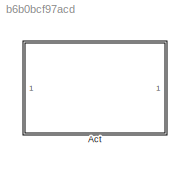
MODEL slx_b6b0bcf97acd
KIND model
CONFIG AbsTol = auto
CONFIG EnableMultiTasking = off
CONFIG FixedStep = auto
CONFIG MaxStep = auto
CONFIG MinStep = auto
CONFIG RelTol = 1e-3
CONFIG SampleTimeConstraint = Unconstrained
CONFIG SolverName = VariableStepAuto
CONFIG StartTime = 0.0
CONFIG StopTime = 10.0
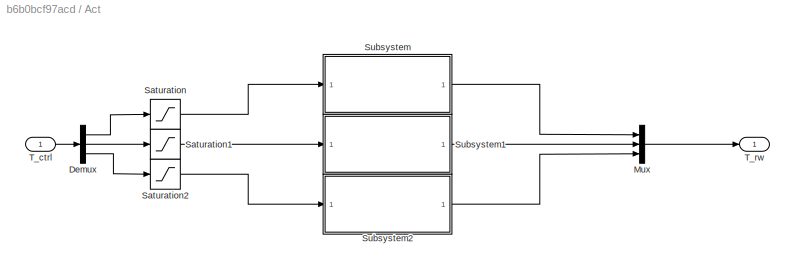
BLOCK [SubSystem] Act
BLOCK [Demux] Act/Demux
  Outputs = 3
BLOCK [Mux] Act/Mux
  DisplayOption = bar
  Inputs = 3
BLOCK [Saturate] Act/Saturation
  LowerLimit = -0.2
  UpperLimit = 0.2
BLOCK [Saturate] Act/Saturation1
  LowerLimit = -0.2
  UpperLimit = 0.2
BLOCK [Saturate] Act/Saturation2
  LowerLimit = -0.2
  UpperLimit = 0.2
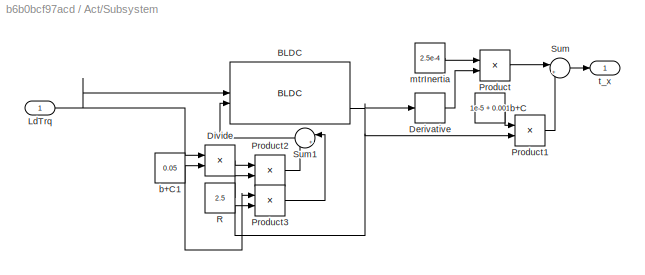
BLOCK [SubSystem] Act/Subsystem
BLOCK [Reference] Act/Subsystem/BLDC  REF=autolibbldc/BLDC
  LibrarySourceBlock = mcblib/Electrical Systems/Motors/BLDC
  SourceBlock = autolibbldc/BLDC
  SourceType = BLDC
BLOCK [Derivative] Act/Subsystem/Derivative
BLOCK [Product] Act/Subsystem/Divide
  Inputs = */
BLOCK [Inport] Act/Subsystem/LdTrq
BLOCK [Product] Act/Subsystem/Product
BLOCK [Product] Act/Subsystem/Product1
BLOCK [Product] Act/Subsystem/Product2
BLOCK [Product] Act/Subsystem/Product3
BLOCK [Constant] Act/Subsystem/R
  Value = 2.5
BLOCK [Sum] Act/Subsystem/Sum
  Inputs = |++
BLOCK [Sum] Act/Subsystem/Sum1
  Inputs = |++
BLOCK [Constant] Act/Subsystem/b+C
  Value = 1e-5 + 0.001
BLOCK [Constant] Act/Subsystem/b+C1
  Value = 0.05
BLOCK [Constant] Act/Subsystem/mtrInertia
  Value = 2.5e-4
BLOCK [Outport] Act/Subsystem/t_x
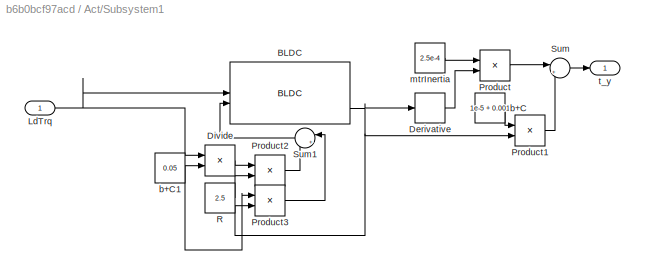
BLOCK [SubSystem] Act/Subsystem1
BLOCK [Reference] Act/Subsystem1/BLDC  REF=autolibbldc/BLDC
  LibrarySourceBlock = mcblib/Electrical Systems/Motors/BLDC
  SourceBlock = autolibbldc/BLDC
  SourceType = BLDC
BLOCK [Derivative] Act/Subsystem1/Derivative
BLOCK [Product] Act/Subsystem1/Divide
  Inputs = */
BLOCK [Inport] Act/Subsystem1/LdTrq
BLOCK [Product] Act/Subsystem1/Product
BLOCK [Product] Act/Subsystem1/Product1
BLOCK [Product] Act/Subsystem1/Product2
BLOCK [Product] Act/Subsystem1/Product3
BLOCK [Constant] Act/Subsystem1/R
  Value = 2.5
BLOCK [Sum] Act/Subsystem1/Sum
  Inputs = |++
BLOCK [Sum] Act/Subsystem1/Sum1
  Inputs = |++
BLOCK [Constant] Act/Subsystem1/b+C
  Value = 1e-5 + 0.001
BLOCK [Constant] Act/Subsystem1/b+C1
  Value = 0.05
BLOCK [Constant] Act/Subsystem1/mtrInertia
  Value = 2.5e-4
BLOCK [Outport] Act/Subsystem1/t_y
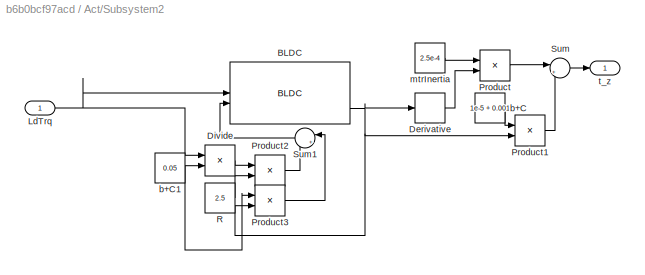
BLOCK [SubSystem] Act/Subsystem2
BLOCK [Reference] Act/Subsystem2/BLDC  REF=autolibbldc/BLDC
  LibrarySourceBlock = mcblib/Electrical Systems/Motors/BLDC
  SourceBlock = autolibbldc/BLDC
  SourceType = BLDC
BLOCK [Derivative] Act/Subsystem2/Derivative
BLOCK [Product] Act/Subsystem2/Divide
  Inputs = */
BLOCK [Inport] Act/Subsystem2/LdTrq
BLOCK [Product] Act/Subsystem2/Product
BLOCK [Product] Act/Subsystem2/Product1
BLOCK [Product] Act/Subsystem2/Product2
BLOCK [Product] Act/Subsystem2/Product3
BLOCK [Constant] Act/Subsystem2/R
  Value = 2.5
BLOCK [Sum] Act/Subsystem2/Sum
  Inputs = |++
BLOCK [Sum] Act/Subsystem2/Sum1
  Inputs = |++
BLOCK [Constant] Act/Subsystem2/b+C
  Value = 1e-5 + 0.001
BLOCK [Constant] Act/Subsystem2/b+C1
  Value = 0.05
BLOCK [Constant] Act/Subsystem2/mtrInertia
  Value = 2.5e-4
BLOCK [Outport] Act/Subsystem2/t_z
BLOCK [Inport] Act/T_ctrl
BLOCK [Outport] Act/T_rw
LINE Act/Demux:1 -> Act/Saturation:1
LINE Act/Demux:2 -> Act/Saturation1:1
LINE Act/Demux:3 -> Act/Saturation2:1
LINE Act/Mux:1 -> Act/T_rw:1
LINE Act/Saturation1:1 -> Act/Subsystem1:1
LINE Act/Saturation2:1 -> Act/Subsystem2:1
LINE Act/Saturation:1 -> Act/Subsystem:1
NET Act/Subsystem/BLDC:3 -> Act/Subsystem/Derivative:1, Act/Subsystem/Product1:2, Act/Subsystem/Product3:2
LINE Act/Subsystem/Derivative:1 -> Act/Subsystem/Product:2
LINE Act/Subsystem/Divide:1 -> Act/Subsystem/Product2:1
NET Act/Subsystem/LdTrq:1 -> Act/Subsystem/BLDC:1, Act/Subsystem/Divide:1
LINE Act/Subsystem/Product1:1 -> Act/Subsystem/Sum:2
LINE Act/Subsystem/Product2:1 -> Act/Subsystem/Sum1:2
LINE Act/Subsystem/Product3:1 -> Act/Subsystem/Sum1:1
LINE Act/Subsystem/Product:1 -> Act/Subsystem/Sum:1
LINE Act/Subsystem/R:1 -> Act/Subsystem/Product2:2
LINE Act/Subsystem/Sum1:1 -> Act/Subsystem/BLDC:2
LINE Act/Subsystem/Sum:1 -> Act/Subsystem/t_x:1
NET Act/Subsystem/b+C1:1 -> Act/Subsystem/Divide:2, Act/Subsystem/Product3:1
LINE Act/Subsystem/b+C:1 -> Act/Subsystem/Product1:1
LINE Act/Subsystem/mtrInertia:1 -> Act/Subsystem/Product:1
NET Act/Subsystem1/BLDC:3 -> Act/Subsystem1/Derivative:1, Act/Subsystem1/Product1:2, Act/Subsystem1/Product3:2
LINE Act/Subsystem1/Derivative:1 -> Act/Subsystem1/Product:2
LINE Act/Subsystem1/Divide:1 -> Act/Subsystem1/Product2:1
NET Act/Subsystem1/LdTrq:1 -> Act/Subsystem1/BLDC:1, Act/Subsystem1/Divide:1
LINE Act/Subsystem1/Product1:1 -> Act/Subsystem1/Sum:2
LINE Act/Subsystem1/Product2:1 -> Act/Subsystem1/Sum1:2
LINE Act/Subsystem1/Product3:1 -> Act/Subsystem1/Sum1:1
LINE Act/Subsystem1/Product:1 -> Act/Subsystem1/Sum:1
LINE Act/Subsystem1/R:1 -> Act/Subsystem1/Product2:2
LINE Act/Subsystem1/Sum1:1 -> Act/Subsystem1/BLDC:2
LINE Act/Subsystem1/Sum:1 -> Act/Subsystem1/t_y:1
NET Act/Subsystem1/b+C1:1 -> Act/Subsystem1/Divide:2, Act/Subsystem1/Product3:1
LINE Act/Subsystem1/b+C:1 -> Act/Subsystem1/Product1:1
LINE Act/Subsystem1/mtrInertia:1 -> Act/Subsystem1/Product:1
LINE Act/Subsystem1:1 -> Act/Mux:2
NET Act/Subsystem2/BLDC:3 -> Act/Subsystem2/Derivative:1, Act/Subsystem2/Product1:2, Act/Subsystem2/Product3:2
LINE Act/Subsystem2/Derivative:1 -> Act/Subsystem2/Product:2
LINE Act/Subsystem2/Divide:1 -> Act/Subsystem2/Product2:1
NET Act/Subsystem2/LdTrq:1 -> Act/Subsystem2/BLDC:1, Act/Subsystem2/Divide:1
LINE Act/Subsystem2/Product1:1 -> Act/Subsystem2/Sum:2
LINE Act/Subsystem2/Product2:1 -> Act/Subsystem2/Sum1:2
LINE Act/Subsystem2/Product3:1 -> Act/Subsystem2/Sum1:1
LINE Act/Subsystem2/Product:1 -> Act/Subsystem2/Sum:1
LINE Act/Subsystem2/R:1 -> Act/Subsystem2/Product2:2
LINE Act/Subsystem2/Sum1:1 -> Act/Subsystem2/BLDC:2
LINE Act/Subsystem2/Sum:1 -> Act/Subsystem2/t_z:1
NET Act/Subsystem2/b+C1:1 -> Act/Subsystem2/Divide:2, Act/Subsystem2/Product3:1
LINE Act/Subsystem2/b+C:1 -> Act/Subsystem2/Product1:1
LINE Act/Subsystem2/mtrInertia:1 -> Act/Subsystem2/Product:1
LINE Act/Subsystem2:1 -> Act/Mux:3
LINE Act/Subsystem:1 -> Act/Mux:1
LINE Act/T_ctrl:1 -> Act/Demux:1
note: NET lines group one-source signal fan-out (src -> all destinations, sorted); 1:1 wires keep LINE
